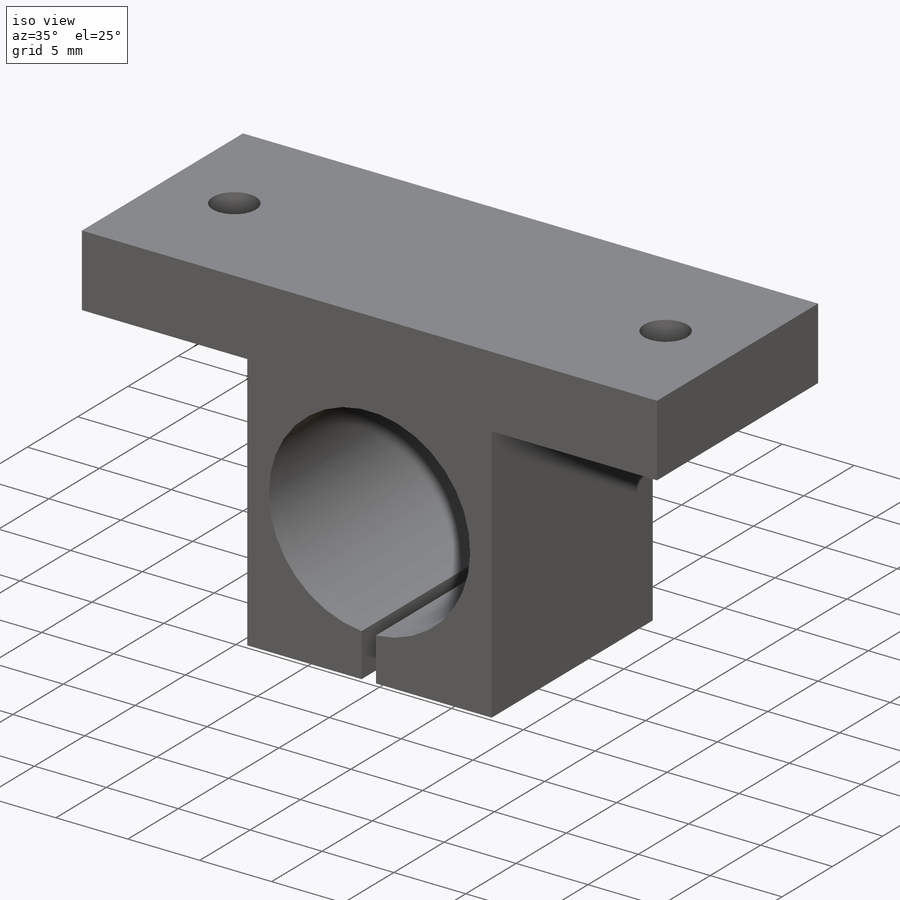
[diagram: iso view]
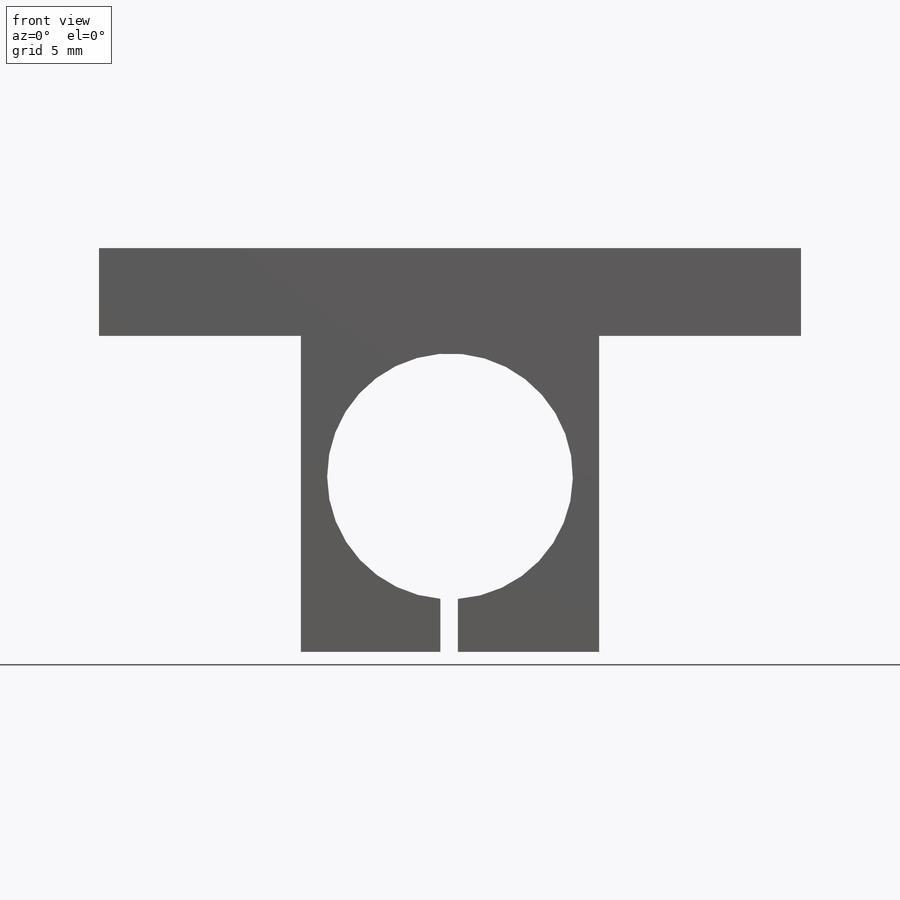
[diagram: front view]
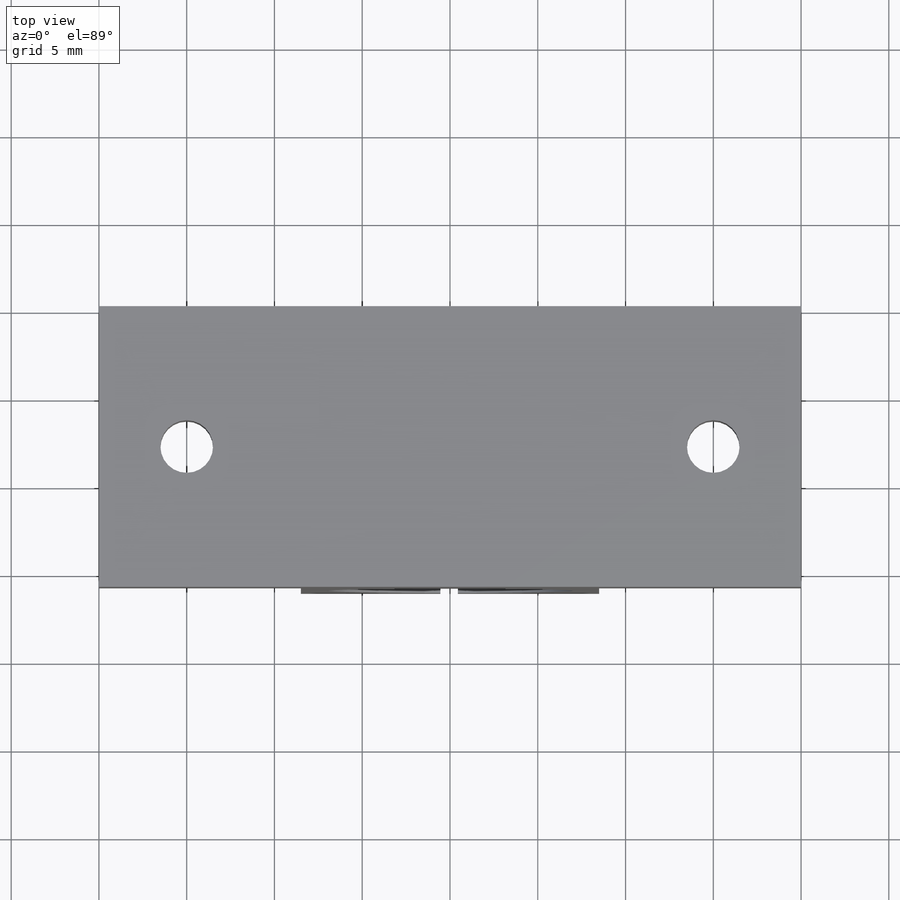
[diagram: top view]
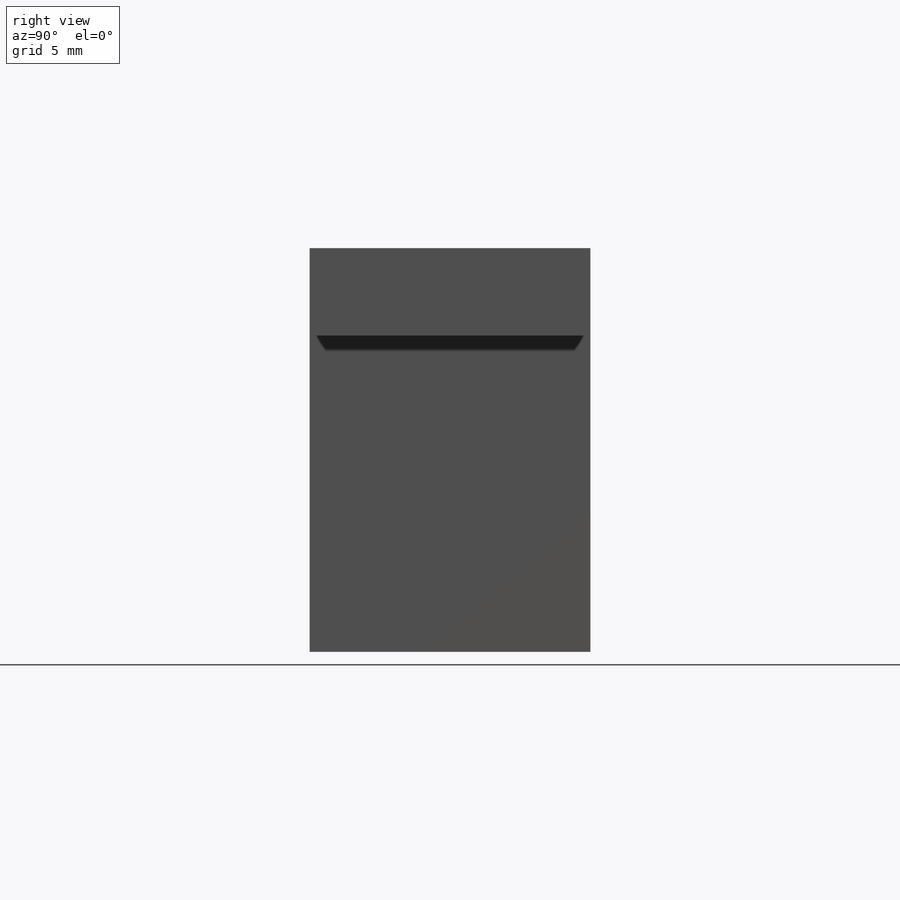
[diagram: right view]
SOLIDWORKS PART (.sldprt)
format: sldprt  version: not decoded by parser v0  size: 174,080 bytes
history: native  units: mm
features: plane x3, sketch x3, cut_extrude x2, material x1, extrude x1, mirror x1 (+9 scaffold rows collapsed)
feature tree (20):
  scaffold x9  (default folders/planes/origin — collapsed)
  material  "Plástico personalizado"
  plane  "Plano frontal"
  plane  "Plano superior"
  plane  "Plano direito"
  sketch  "Esboço1"  dims[c1.D4=14.0mm c1.D1=17.0mm c1.D2=40.0mm c1.D3=18.0mm c2.D4=10.0mm c2.D5=10.0mm]
  extrude  "Ressalto-extrusão1"  Depth=16mm
  sketch  "Esboço2"  dims[D1=1.0mm]
  cut_extrude  "Corte-extrusão1"  [1 undecoded]
  sketch  "Esboço3"  dims[c1.D2=3.0mm c1.D1=5.0mm c1.D3=~8.407168mm c1.D4=~8.54787mm c2.D3=8.0mm]
  cut_extrude  "Corte-extrusão2"  Depth=16mm
  mirror  "Espelhar1"
decode coverage: 5 of 7 modeling features carry decoded parameters
note: ~ marks probable driven/reference dimensions
note: 1 parameter value undecoded
note: suppression state not decoded; provenance and decode notes live in map.json
